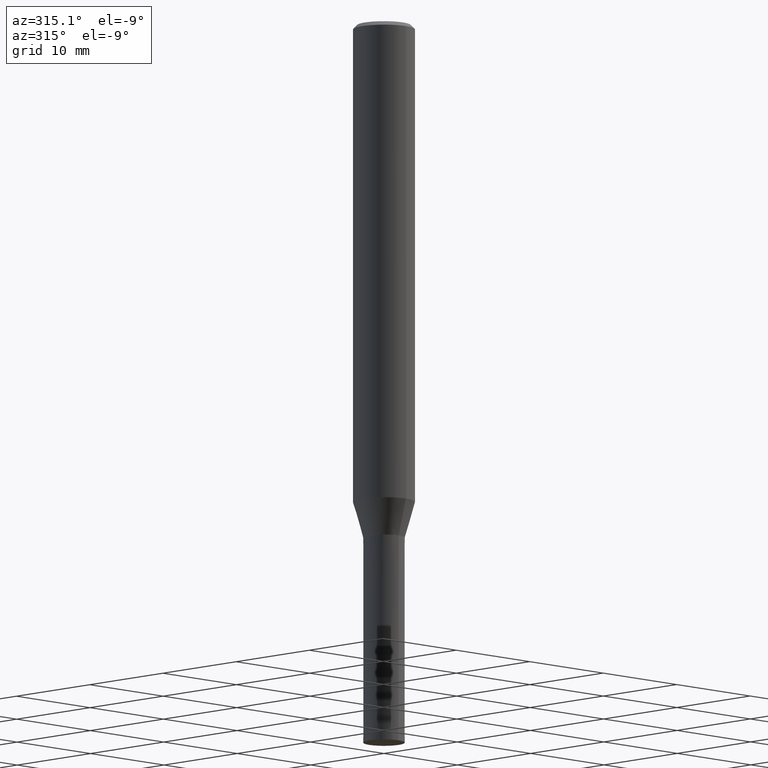
[diagram: clean part render]
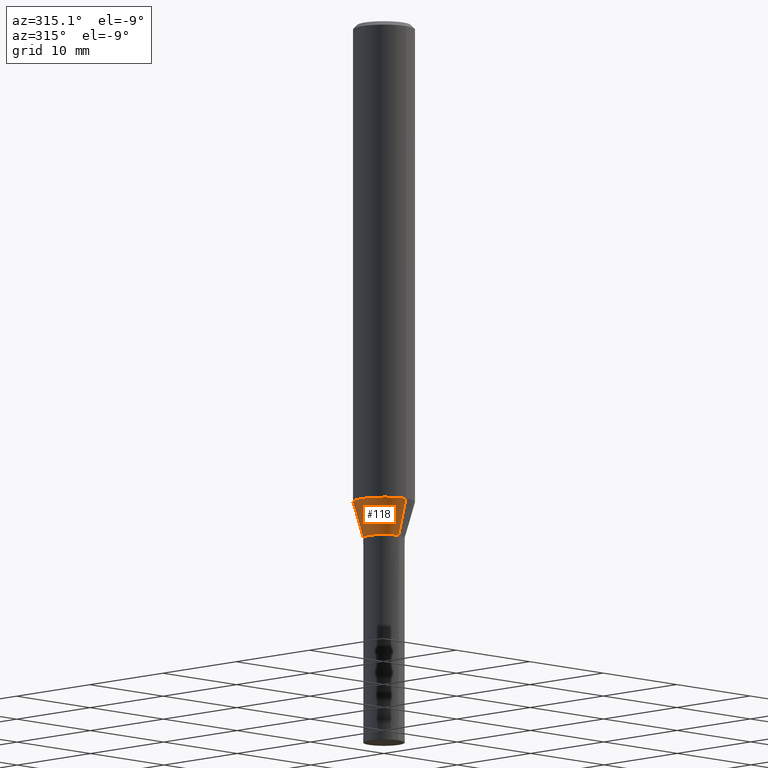
[diagram: same view with one face highlighted and labeled with its STEP entity id]
A machine part, auxiliary view. The second image highlights one B-rep face of the part: STEP entity #118.
In plain terms, the highlighted conical surface has half-angle 16.002 deg.
Its self-contained STEP definition (entity closure, byte-faithful):
#104=VERTEX_POINT('',#229);
#108=EDGE_CURVE('',#152,#176,#233,.T.);
#110=EDGE_CURVE('',#176,#104,#235,.T.);
#112=EDGE_CURVE('',#152,#128,#237,.T.);
#118=ADVANCED_FACE('',(#244),#245,.T.);
#128=VERTEX_POINT('',#257);
#152=VERTEX_POINT('',#285);
#174=EDGE_CURVE('',#104,#128,#307,.T.);
#176=VERTEX_POINT('',#309);
#229=CARTESIAN_POINT('',(0.0,2.99995,-46.513));
#233=LINE('',#369,#370);
#235=CIRCLE('',#373,2.99995);
#237=CIRCLE('',#376,1.99995);
#244=FACE_OUTER_BOUND('',#385,.T.);
#245=CONICAL_SURFACE('',#386,2.49995,0.279284171542493);
#257=CARTESIAN_POINT('',(0.0,1.99995,-50.0));
#285=CARTESIAN_POINT('',(2.44915147732706E-016,-1.99995,-50.0));
#307=LINE('',#458,#459);
#309=CARTESIAN_POINT('',(3.67375783114944E-016,-2.99995,-46.513));
#369=CARTESIAN_POINT('',(3.06145465423825E-016,-2.49995,-48.2565));
#370=VECTOR('',#518,1.0);
#373=AXIS2_PLACEMENT_3D('',#519,#520,#521);
#376=AXIS2_PLACEMENT_3D('',#522,#523,#524);
#385=EDGE_LOOP('',(#533,#534,#535,#536));
#386=AXIS2_PLACEMENT_3D('',#537,#538,#539);
#458=CARTESIAN_POINT('',(-3.06145465423825E-016,2.49995,-48.2565));
#459=VECTOR('',#611,1.0);
#518=DIRECTION('',(3.3758432755158E-017,-0.275667626987133,0.961253015304131));
#519=CARTESIAN_POINT('',(0.0,0.0,-46.513));
#520=DIRECTION('',(0.0,0.0,-1.0));
#521=DIRECTION('',(0.0,1.0,0.0));
#522=CARTESIAN_POINT('',(0.0,0.0,-50.0));
#523=DIRECTION('',(0.0,0.0,-1.0));
#524=DIRECTION('',(0.0,1.0,0.0));
#533=ORIENTED_EDGE('',*,*,#174,.T.);
#534=ORIENTED_EDGE('',*,*,#112,.F.);
#535=ORIENTED_EDGE('',*,*,#108,.T.);
#536=ORIENTED_EDGE('',*,*,#110,.T.);
#537=CARTESIAN_POINT('',(0.0,0.0,-48.2565));
#538=DIRECTION('',(-0.0,-0.0,1.0));
#539=DIRECTION('',(0.0,1.0,0.0));
#611=DIRECTION('',(3.3758432755158E-017,-0.275667626987133,-0.961253015304131));